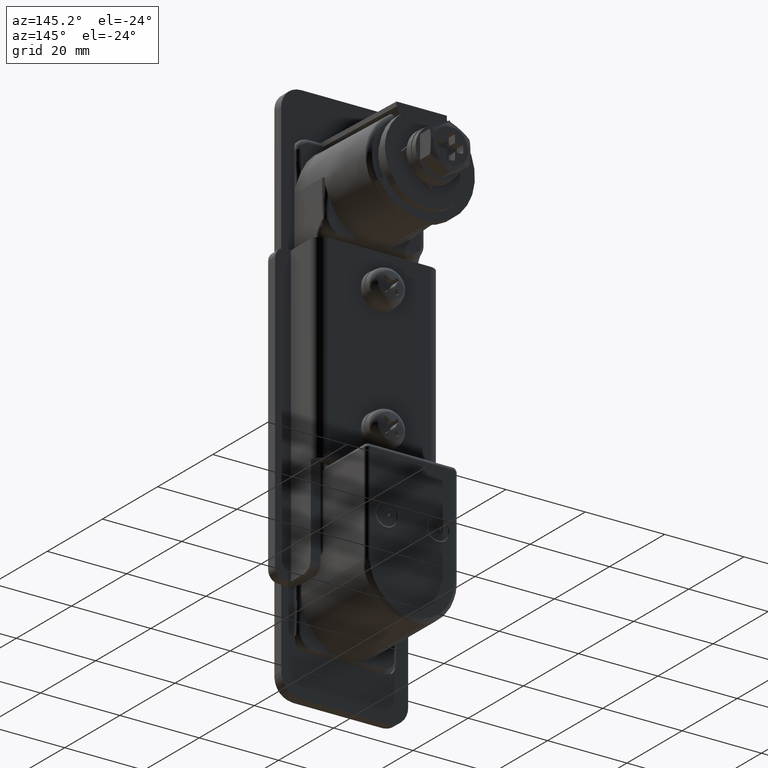
[diagram: clean part render]
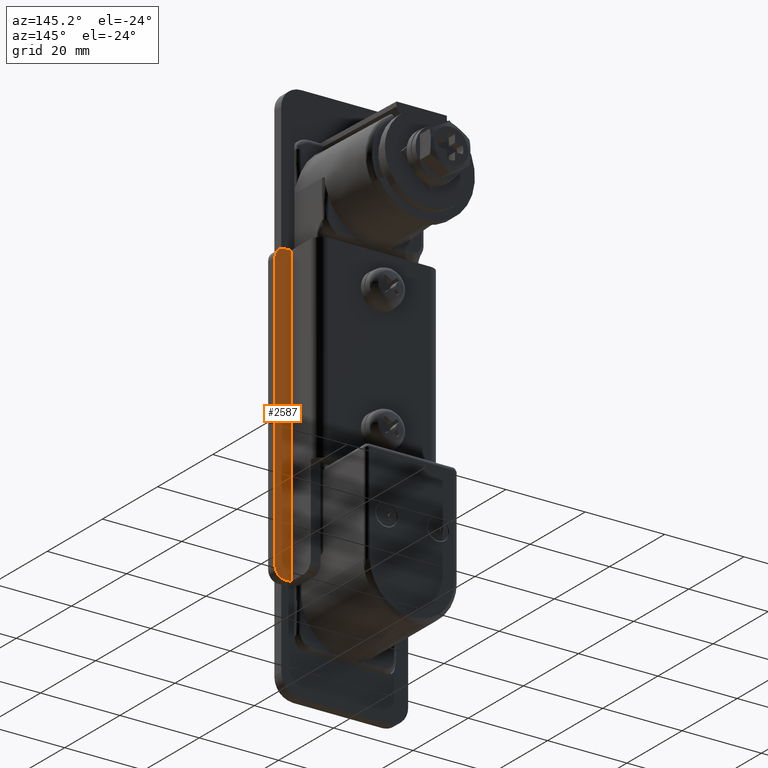
[diagram: same view with one face highlighted and labeled with its STEP entity id]
A machine part, auxiliary view. The second image highlights one B-rep face of the part: STEP entity #2587.
In plain terms, the highlighted face is a freeform B-spline surface patch.
Its self-contained STEP definition (entity closure, byte-faithful):
#2047=CARTESIAN_POINT('',(6.800000000000000,-17.0,-89.500000000000000));
#2048=VERTEX_POINT('',#2047);
#2054=CARTESIAN_POINT('',(6.800000000000000,-19.500000000000000,-87.0));
#2055=VERTEX_POINT('',#2054);
#2056=CARTESIAN_POINT('',(6.800000000000000,-19.500000000000000,-87.0));
#2057=CARTESIAN_POINT('',(6.799999999999996,-19.500443854205059,-87.347759588085950));
#2058=CARTESIAN_POINT('',(6.799999999999997,-19.365506901970001,-87.981487937173000));
#2059=CARTESIAN_POINT('',(6.800000000000004,-18.904286350899671,-88.671816443168169));
#2060=CARTESIAN_POINT('',(6.800000000000003,-18.431707933299730,-89.069101916940753));
#2061=CARTESIAN_POINT('',(6.800000000000002,-17.838291027558451,-89.395905802994037));
#2062=CARTESIAN_POINT('',(6.799999999999989,-17.347798934517549,-89.500468814343492));
#2063=CARTESIAN_POINT('',(6.800000000000000,-17.0,-89.500000000000000));
#2064=B_SPLINE_CURVE_WITH_KNOTS('',3,(#2056,#2057,#2058,#2059,#2060,#2061,#2062,#2063),.UNSPECIFIED.,.F.,.U.,(4,1,1,1,1,4),(0.000000307271375,1.043135946012805,1.902227440174774,2.454423626520123,2.883953722123376,3.927089360864353),.UNSPECIFIED.);
#2065=EDGE_CURVE('',#2055,#2048,#2064,.T.);
#2219=CARTESIAN_POINT('',(6.800000000000000,-19.500000000000000,-17.0));
#2220=VERTEX_POINT('',#2219);
#2226=CARTESIAN_POINT('',(6.800000000000000,-17.0,-14.500000000000000));
#2227=VERTEX_POINT('',#2226);
#2228=CARTESIAN_POINT('',(6.800000000000000,-17.0,-14.500000000000000));
#2229=CARTESIAN_POINT('',(6.800000000000009,-17.347756057431411,-14.499573278548681));
#2230=CARTESIAN_POINT('',(6.799999999999985,-17.981495845540511,-14.634452679738930));
#2231=CARTESIAN_POINT('',(6.800000000000018,-18.706328003918600,-15.118804253277400));
#2232=CARTESIAN_POINT('',(6.799999999999994,-19.131800233430099,-15.650722543676130));
#2233=CARTESIAN_POINT('',(6.800000000000005,-19.421792548072808,-16.263816851942011));
#2234=CARTESIAN_POINT('',(6.800000000000018,-19.500208458805659,-16.713622285591509));
#2235=CARTESIAN_POINT('',(6.800000000000000,-19.500000000000000,-17.0));
#2236=B_SPLINE_CURVE_WITH_KNOTS('',3,(#2228,#2229,#2230,#2231,#2232,#2233,#2234,#2235),.UNSPECIFIED.,.F.,.U.,(4,1,1,1,1,4),(0.000000307274926,1.043135946015472,1.902227440176638,2.577127142327800,3.068047249479139,3.927089360864210),.UNSPECIFIED.);
#2237=EDGE_CURVE('',#2227,#2220,#2236,.T.);
#2307=CARTESIAN_POINT('',(6.800000000000000,-15.500000000000000,-14.500000000000000));
#2308=VERTEX_POINT('',#2307);
#2309=CARTESIAN_POINT('',(6.800000000000000,-17.0,-14.500000000000000));
#2310=CARTESIAN_POINT('',(6.800000000000000,-15.500000000000000,-14.500000000000000));
#2311=QUASI_UNIFORM_CURVE('',1,(#2309,#2310),.UNSPECIFIED.,.F.,.U.);
#2312=EDGE_CURVE('',#2227,#2308,#2311,.T.);
#2547=CARTESIAN_POINT('',(6.800000000000000,-15.500000000000000,-89.500000000000000));
#2548=VERTEX_POINT('',#2547);
#2558=CARTESIAN_POINT('',(6.800000000000000,-15.500000000000000,-89.500000000000000));
#2559=CARTESIAN_POINT('',(6.800000000000000,-15.500000000000000,-14.500000000000000));
#2560=QUASI_UNIFORM_CURVE('',1,(#2558,#2559),.UNSPECIFIED.,.F.,.U.);
#2561=EDGE_CURVE('',#2548,#2308,#2560,.T.);
#2566=CARTESIAN_POINT('',(6.800000000000000,-19.699799992247218,-93.246249854635465));
#2567=CARTESIAN_POINT('',(6.800000000000000,-15.300199900464410,-93.246249854635465));
#2568=CARTESIAN_POINT('',(6.800000000000000,-19.699799992247218,-10.753748133707790));
#2569=CARTESIAN_POINT('',(6.800000000000000,-15.300199900464410,-10.753748133707790));
#2570=B_SPLINE_SURFACE_WITH_KNOTS('',1,1,((#2566,#2568),(#2567,#2569)),.UNSPECIFIED.,.F.,.F.,.U.,(2,2),(2,2),(0.0,4.399600091782808),(0.0,82.492501720927677),.UNSPECIFIED.);
#2571=ORIENTED_EDGE('',*,*,#2312,.F.);
#2572=ORIENTED_EDGE('',*,*,#2237,.T.);
#2573=CARTESIAN_POINT('',(6.800000000000000,-19.500000000000000,-87.0));
#2574=CARTESIAN_POINT('',(6.800000000000000,-19.500000000000000,-17.0));
#2575=QUASI_UNIFORM_CURVE('',1,(#2573,#2574),.UNSPECIFIED.,.F.,.U.);
#2576=EDGE_CURVE('',#2055,#2220,#2575,.T.);
#2577=ORIENTED_EDGE('',*,*,#2576,.F.);
#2578=ORIENTED_EDGE('',*,*,#2065,.T.);
#2579=CARTESIAN_POINT('',(6.800000000000000,-17.0,-89.500000000000000));
#2580=CARTESIAN_POINT('',(6.800000000000000,-15.500000000000000,-89.500000000000000));
#2581=QUASI_UNIFORM_CURVE('',1,(#2579,#2580),.UNSPECIFIED.,.F.,.U.);
#2582=EDGE_CURVE('',#2048,#2548,#2581,.T.);
#2583=ORIENTED_EDGE('',*,*,#2582,.T.);
#2584=ORIENTED_EDGE('',*,*,#2561,.T.);
#2585=EDGE_LOOP('',(#2571,#2572,#2577,#2578,#2583,#2584));
#2586=FACE_OUTER_BOUND('',#2585,.T.);
#2587=ADVANCED_FACE('',(#2586),#2570,.T.);